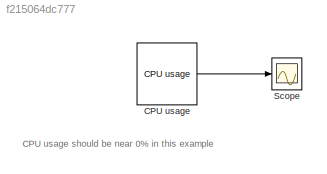
MODEL mdl_f215064dc777
KIND model
CONFIG AbsTol = auto
CONFIG EnableMultiTasking = on
CONFIG FixedStep = auto
CONFIG MaxStep = auto
CONFIG MinStep = auto
CONFIG RelTol = 1e-3
CONFIG SampleTimeConstraint = Unconstrained
CONFIG SolverName = FixedStepDiscrete
CONFIG StartTime = 0.0
CONFIG StopTime = Inf
BLOCK [Reference] CPU usage  REF=rpi_blkst/CPU usage  (lib defined in mdl_5f9edbe601a8, slx_830431f926a7)
  SourceBlock = rpi_blkst/CPU usage
  SourceProductName = RPI Blockset
  SourceType = Target CPU usage
BLOCK [Scope] Scope
  Floating = off
  NumInputPorts = 1
  ScopeSpecificationString = C++SS(StrPVP('Location','[571, 478, 895, 717]'),StrPVP('Open','off'),MxPVP('AxesTitles',54,'struct(''axes1'',''%<SignalLabel>'')'),StrPVP('YMin','1'),StrPVP('YMax','14'),StrPVP('DataFormat','StructureWithTime'),StrPVP('BlockParamSampleTime','0'),StrPVP('LimitDataPoints','on'),StrPVP('Decimation','1'),StrPVP('BlockParamSampleInput','off'))
ANNOTATION (root): CPU usage should be near 0% in this example
LINE CPU usage:1 -> Scope:1
